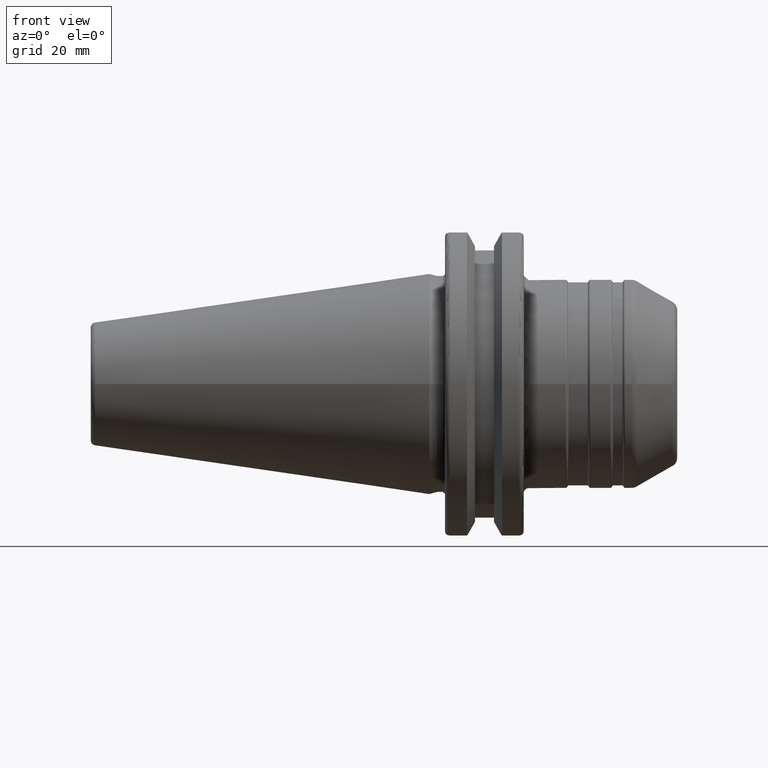
[diagram: clean part render]
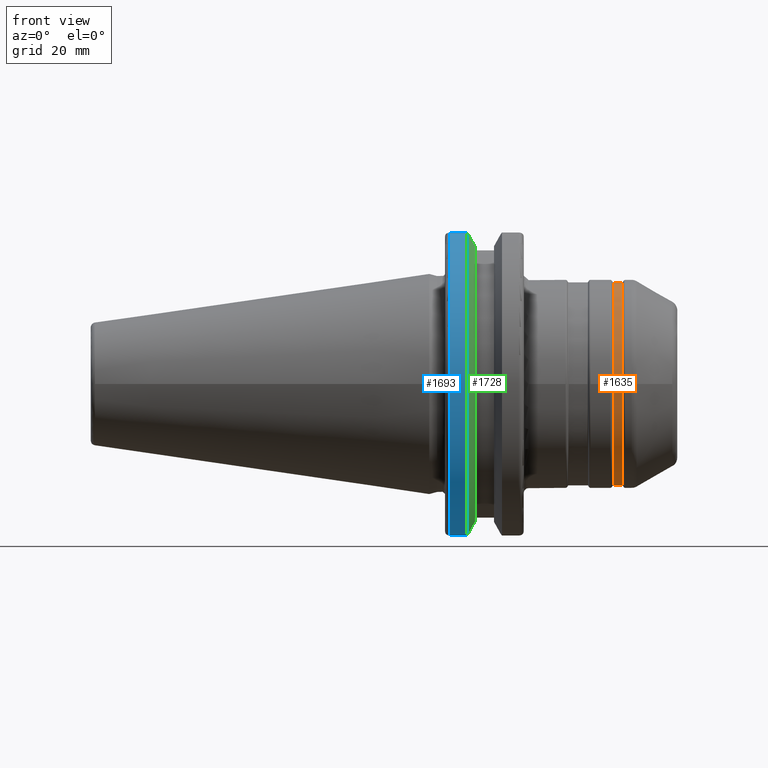
[diagram: same view with three faces highlighted in distinct colors, each labeled with its STEP entity id]
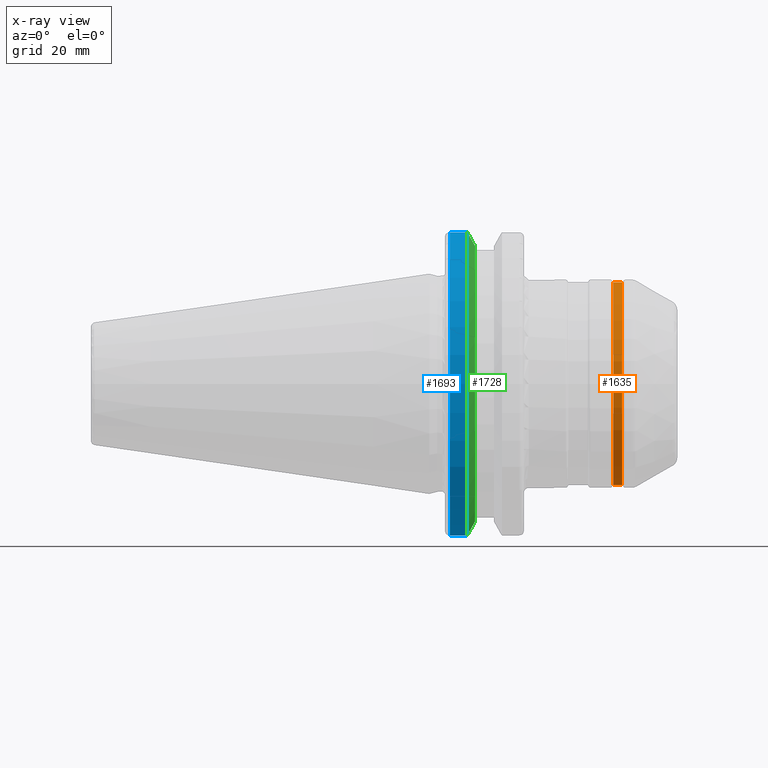
[diagram: x-ray of the same camera — body ghosted, the three highlighted faces saturated]
A machine part, front view with three faces highlighted in distinct colors.
The next image is the same camera in x-ray (body ghosted, the three faces saturated) — at least one of them is partly hidden behind the body in this view.
Their STEP definitions:

[orange] entity #1635 — the highlighted cylindrical surface (bore or boss wall) has radius 20.5 mm, axis along (1, 0, 0).
#138=LINE('',#2535,#230);
#230=VECTOR('',#1994,20.5);
#322=CYLINDRICAL_SURFACE('',#1759,20.5);
#353=FACE_OUTER_BOUND('',#449,.T.);
#449=EDGE_LOOP('',(#1105,#1106,#1107,#1108,#1109,#1110));
#560=CIRCLE('',#1754,20.5);
#564=CIRCLE('',#1758,20.5);
#565=CIRCLE('',#1760,20.5);
#566=CIRCLE('',#1761,20.5);
#669=VERTEX_POINT('',#2524);
#670=VERTEX_POINT('',#2525);
#673=VERTEX_POINT('',#2534);
#674=VERTEX_POINT('',#2536);
#840=EDGE_CURVE('',#669,#670,#560,.T.);
#844=EDGE_CURVE('',#670,#669,#564,.T.);
#845=EDGE_CURVE('',#669,#673,#138,.T.);
#846=EDGE_CURVE('',#674,#673,#565,.T.);
#847=EDGE_CURVE('',#673,#674,#566,.T.);
#1105=ORIENTED_EDGE('',*,*,#840,.F.);
#1106=ORIENTED_EDGE('',*,*,#845,.T.);
#1107=ORIENTED_EDGE('',*,*,#846,.F.);
#1108=ORIENTED_EDGE('',*,*,#847,.F.);
#1109=ORIENTED_EDGE('',*,*,#845,.F.);
#1110=ORIENTED_EDGE('',*,*,#844,.F.);
#1635=ADVANCED_FACE('',(#353),#322,.T.);
#1754=AXIS2_PLACEMENT_3D('',#2526,#1982,#1983);
#1758=AXIS2_PLACEMENT_3D('',#2532,#1990,#1991);
#1759=AXIS2_PLACEMENT_3D('',#2533,#1992,#1993);
#1760=AXIS2_PLACEMENT_3D('',#2537,#1995,#1996);
#1761=AXIS2_PLACEMENT_3D('',#2538,#1997,#1998);
#1982=DIRECTION('center_axis',(1.,0.,0.));
#1983=DIRECTION('ref_axis',(0.,-1.,1.83697019872103E-16));
#1990=DIRECTION('center_axis',(1.,0.,0.));
#1991=DIRECTION('ref_axis',(0.,-1.,1.83697019872103E-16));
#1992=DIRECTION('center_axis',(1.,0.,0.));
#1993=DIRECTION('ref_axis',(0.,1.,0.));
#1994=DIRECTION('',(-1.,0.,0.));
#1995=DIRECTION('center_axis',(-1.,0.,0.));
#1996=DIRECTION('ref_axis',(0.,-1.,1.83697019872103E-16));
#1997=DIRECTION('center_axis',(-1.,0.,0.));
#1998=DIRECTION('ref_axis',(0.,-1.,1.83697019872103E-16));
#2524=CARTESIAN_POINT('',(38.8845299461621,-20.5,-2.51052593825207E-15));
#2525=CARTESIAN_POINT('',(38.8845299461621,-2.51052593825207E-15,20.5));
#2526=CARTESIAN_POINT('Origin',(38.8845299461621,0.,0.));
#2532=CARTESIAN_POINT('Origin',(38.8845299461621,0.,0.));
#2533=CARTESIAN_POINT('Origin',(38.,0.,0.));
#2534=CARTESIAN_POINT('',(37.1154700538379,-20.5,-2.51052593825207E-15));
#2535=CARTESIAN_POINT('',(38.,-20.5,-2.51052593825207E-15));
#2536=CARTESIAN_POINT('',(37.1154700538379,-2.51052593825207E-15,20.5));
#2537=CARTESIAN_POINT('Origin',(37.1154700538379,0.,0.));
#2538=CARTESIAN_POINT('Origin',(37.1154700538379,0.,0.));

[blue] entity #1693 — the highlighted cylindrical surface (partial cylindrical patch) has radius 31.75 mm, axis along (1, 0, 0).
#207=LINE('',#3120,#299);
#208=LINE('',#3126,#300);
#299=VECTOR('',#2379,10.);
#300=VECTOR('',#2382,10.);
#344=CYLINDRICAL_SURFACE('',#1918,31.75);
#411=FACE_OUTER_BOUND('',#520,.T.);
#520=EDGE_LOOP('',(#1453,#1454,#1455,#1456));
#645=CIRCLE('',#1916,31.75);
#646=CIRCLE('',#1919,31.75);
#812=VERTEX_POINT('',#3099);
#813=VERTEX_POINT('',#3108);
#814=VERTEX_POINT('',#3119);
#815=VERTEX_POINT('',#3125);
#1039=EDGE_CURVE('',#812,#813,#645,.T.);
#1041=EDGE_CURVE('',#813,#814,#207,.T.);
#1043=EDGE_CURVE('',#815,#812,#208,.T.);
#1044=EDGE_CURVE('',#814,#815,#646,.T.);
#1453=ORIENTED_EDGE('',*,*,#1039,.F.);
#1454=ORIENTED_EDGE('',*,*,#1043,.F.);
#1455=ORIENTED_EDGE('',*,*,#1044,.F.);
#1456=ORIENTED_EDGE('',*,*,#1041,.F.);
#1693=ADVANCED_FACE('',(#411),#344,.T.);
#1916=AXIS2_PLACEMENT_3D('',#3109,#2375,#2376);
#1918=AXIS2_PLACEMENT_3D('',#3124,#2380,#2381);
#1919=AXIS2_PLACEMENT_3D('',#3127,#2383,#2384);
#2375=DIRECTION('center_axis',(-1.,0.,0.));
#2376=DIRECTION('ref_axis',(0.,-1.,1.60812264967664E-16));
#2379=DIRECTION('',(1.,0.,0.));
#2380=DIRECTION('center_axis',(1.,0.,0.));
#2381=DIRECTION('ref_axis',(0.,-1.,1.22464679914735E-16));
#2382=DIRECTION('',(-1.,0.,0.));
#2383=DIRECTION('center_axis',(1.,0.,0.));
#2384=DIRECTION('ref_axis',(0.,0.,-1.));
#3099=CARTESIAN_POINT('',(4.175,-8.67204822802685,-30.5427254764662));
#3108=CARTESIAN_POINT('',(4.175,-8.67204822802685,30.5427254764662));
#3109=CARTESIAN_POINT('Origin',(4.175,0.,0.));
#3119=CARTESIAN_POINT('',(7.60793323092436,-8.67204822802685,30.5427254764662));
#3120=CARTESIAN_POINT('',(5.39146661546218,-8.67204822802685,30.5427254764662));
#3124=CARTESIAN_POINT('Origin',(5.39146661546218,0.,0.));
#3125=CARTESIAN_POINT('',(7.60793323092436,-8.67204822802685,-30.5427254764662));
#3126=CARTESIAN_POINT('',(5.39146661546218,-8.67204822802685,-30.5427254764662));
#3127=CARTESIAN_POINT('Origin',(7.60793323092436,0.,0.));

[green] entity #1728 — the highlighted conical surface has half-angle 60 deg.
#18=(
BOUNDED_CURVE()
B_SPLINE_CURVE(2,(#3058,#3059,#3060),.UNSPECIFIED.,.F.,.F.)
B_SPLINE_CURVE_WITH_KNOTS((3,3),(0.,0.276549142796136),.UNSPECIFIED.)
CURVE()
GEOMETRIC_REPRESENTATION_ITEM()
RATIONAL_B_SPLINE_CURVE((1.,1.00095203903316,1.00031614444813))
REPRESENTATION_ITEM('')
);
#21=(
BOUNDED_CURVE()
B_SPLINE_CURVE(2,(#3086,#3087,#3088),.UNSPECIFIED.,.F.,.F.)
B_SPLINE_CURVE_WITH_KNOTS((3,3),(0.0550586467392022,0.33160778953585),
 .UNSPECIFIED.)
CURVE()
GEOMETRIC_REPRESENTATION_ITEM()
RATIONAL_B_SPLINE_CURVE((1.00031614445148,1.00095203904325,1.))
REPRESENTATION_ITEM('')
);
#22=(
BOUNDED_CURVE()
B_SPLINE_CURVE(2,(#3121,#3122,#3123),.UNSPECIFIED.,.F.,.F.)
B_SPLINE_CURVE_WITH_KNOTS((3,3),(0.,0.0639048713676282),.UNSPECIFIED.)
CURVE()
GEOMETRIC_REPRESENTATION_ITEM()
RATIONAL_B_SPLINE_CURVE((1.,1.00028444218284,1.00047644010574))
REPRESENTATION_ITEM('')
);
#23=(
BOUNDED_CURVE()
B_SPLINE_CURVE(2,(#3129,#3130,#3131),.UNSPECIFIED.,.F.,.F.)
B_SPLINE_CURVE_WITH_KNOTS((3,3),(0.329353533631205,0.393258405001025),
 .UNSPECIFIED.)
CURVE()
GEOMETRIC_REPRESENTATION_ITEM()
RATIONAL_B_SPLINE_CURVE((1.00047644010572,1.00028444218283,1.))
REPRESENTATION_ITEM('')
);
#137=CONICAL_SURFACE('',#1975,30.3546886482472,1.0471975511966);
#446=FACE_OUTER_BOUND('',#558,.T.);
#558=EDGE_LOOP('',(#1607,#1608,#1609,#1610,#1611,#1612));
#646=CIRCLE('',#1919,31.75);
#668=CIRCLE('',#1976,28.9593772964944);
#799=VERTEX_POINT('',#3055);
#800=VERTEX_POINT('',#3057);
#809=VERTEX_POINT('',#3083);
#810=VERTEX_POINT('',#3085);
#814=VERTEX_POINT('',#3119);
#815=VERTEX_POINT('',#3125);
#1023=EDGE_CURVE('',#800,#799,#18,.T.);
#1034=EDGE_CURVE('',#810,#809,#21,.T.);
#1042=EDGE_CURVE('',#814,#799,#22,.T.);
#1044=EDGE_CURVE('',#814,#815,#646,.T.);
#1045=EDGE_CURVE('',#810,#815,#23,.T.);
#1098=EDGE_CURVE('',#800,#809,#668,.T.);
#1607=ORIENTED_EDGE('',*,*,#1045,.F.);
#1608=ORIENTED_EDGE('',*,*,#1034,.T.);
#1609=ORIENTED_EDGE('',*,*,#1098,.F.);
#1610=ORIENTED_EDGE('',*,*,#1023,.T.);
#1611=ORIENTED_EDGE('',*,*,#1042,.F.);
#1612=ORIENTED_EDGE('',*,*,#1044,.T.);
#1728=ADVANCED_FACE('',(#446),#137,.T.);
#1919=AXIS2_PLACEMENT_3D('',#3127,#2383,#2384);
#1975=AXIS2_PLACEMENT_3D('',#3274,#2516,#2517);
#1976=AXIS2_PLACEMENT_3D('',#3275,#2518,#2519);
#2383=DIRECTION('center_axis',(1.,0.,0.));
#2384=DIRECTION('ref_axis',(0.,0.,-1.));
#2516=DIRECTION('center_axis',(-1.,0.,0.));
#2517=DIRECTION('ref_axis',(0.,-1.,-1.22464679914735E-16));
#2518=DIRECTION('center_axis',(1.,0.,0.));
#2519=DIRECTION('ref_axis',(0.,0.,-1.));
#3055=CARTESIAN_POINT('',(7.88668530351257,-8.19,30.1755016258903));
#3057=CARTESIAN_POINT('',(9.2191,-8.19,27.7771386827498));
#3058=CARTESIAN_POINT('Ctrl Pts',(9.2191,-8.19,27.7771386827498));
#3059=CARTESIAN_POINT('Ctrl Pts',(8.58046356152393,-8.19,28.9303689539705));
#3060=CARTESIAN_POINT('Ctrl Pts',(7.88668530351257,-8.19,30.1755016258903));
#3083=CARTESIAN_POINT('',(9.2191,-8.19,-27.7771386827498));
#3085=CARTESIAN_POINT('',(7.88668530351256,-8.19,-30.1755016258903));
#3086=CARTESIAN_POINT('Ctrl Pts',(7.88668530351256,-8.19,-30.1755016258903));
#3087=CARTESIAN_POINT('Ctrl Pts',(8.5804635615235,-8.19,-28.9303689539712));
#3088=CARTESIAN_POINT('Ctrl Pts',(9.2191,-8.19,-27.7771386827498));
#3119=CARTESIAN_POINT('',(7.60793323092436,-8.67204822802685,30.5427254764662));
#3121=CARTESIAN_POINT('Ctrl Pts',(7.60793323092436,-8.67204822802686,30.5427254764662));
#3122=CARTESIAN_POINT('Ctrl Pts',(7.74899148121626,-8.42917748262648,30.357706789263));
#3123=CARTESIAN_POINT('Ctrl Pts',(7.88668530351257,-8.19,30.1755016258903));
#3125=CARTESIAN_POINT('',(7.60793323092436,-8.67204822802685,-30.5427254764662));
#3127=CARTESIAN_POINT('Origin',(7.60793323092436,0.,0.));
#3129=CARTESIAN_POINT('Ctrl Pts',(7.88668530351256,-8.19,-30.1755016258903));
#3130=CARTESIAN_POINT('Ctrl Pts',(7.74899148121159,-8.42917748263467,-30.3577067892692));
#3131=CARTESIAN_POINT('Ctrl Pts',(7.60793323092435,-8.67204822802687,-30.5427254764662));
#3274=CARTESIAN_POINT('Origin',(8.41351661546218,0.,0.));
#3275=CARTESIAN_POINT('Origin',(9.2191,0.,0.));